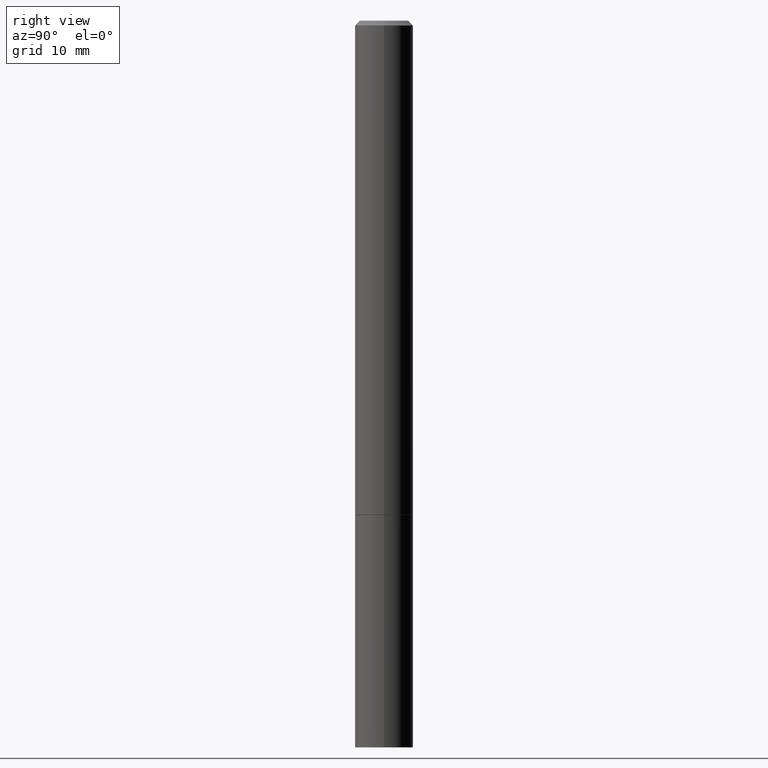
[diagram: clean part render]
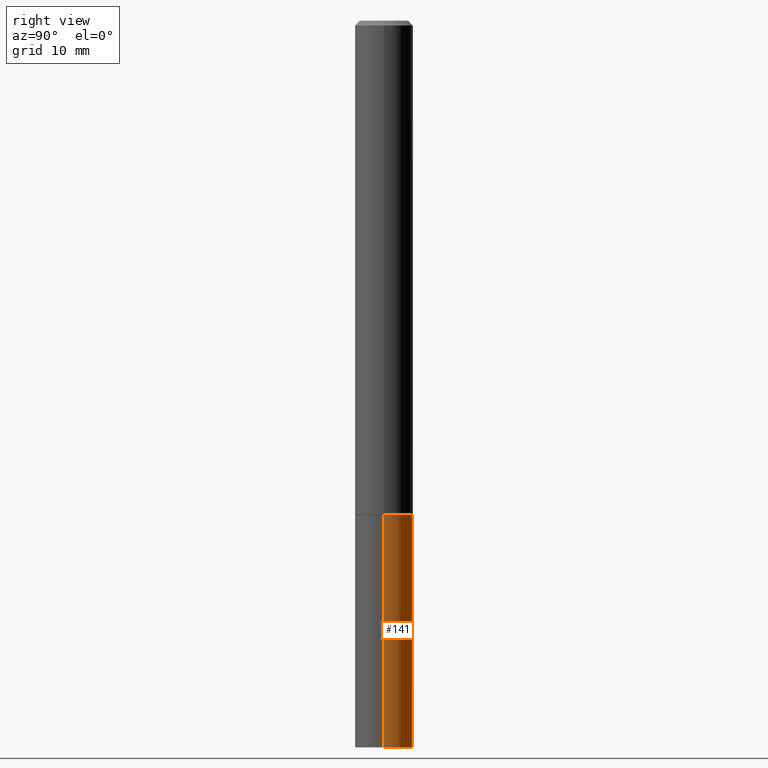
[diagram: same view with one face highlighted and labeled with its STEP entity id]
A machine part, right view. The second image highlights one B-rep face of the part: STEP entity #141.
In plain terms, the highlighted cylindrical surface (edge-blend (fillet) strip) has radius 2.9997 mm, axis along (-0, 0, 1).
Its self-contained STEP definition (entity closure, byte-faithful):
#1 = ORIENTED_EDGE ( 'NONE', *, *, #45, .F. ) ;
#8 = VERTEX_POINT ( 'NONE', #298 ) ;
#10 = DIRECTION ( 'NONE',  ( -2.445468806185136877E-29, 3.491481338843145188E-15, 1.000000000000000000 ) ) ;
#11 = EDGE_CURVE ( 'NONE', #37, #144, #153, .T. ) ;
#12 = CARTESIAN_POINT ( 'NONE',  ( 0.1180999999999999966, -8.246878922347480654E-16, 5.758764772215000440E-30 ) ) ;
#29 = CARTESIAN_POINT ( 'NONE',  ( -0.1180999999999999966, -7.820944767866917317E-15, -2.952799999999999869 ) ) ;
#37 = VERTEX_POINT ( 'NONE', #29 ) ;
#45 = EDGE_CURVE ( 'NONE', #8, #144, #212, .T. ) ;
#46 = ORIENTED_EDGE ( 'NONE', *, *, #244, .F. ) ;
#71 = LINE ( 'NONE', #12, #200 ) ;
#90 = DIRECTION ( 'NONE',  ( 1.000000000000000000, -6.982962677686266711E-15, 4.876176775795936353E-29 ) ) ;
#95 = CARTESIAN_POINT ( 'NONE',  ( 0.1180999999999999966, -1.113433398957078679E-14, -2.952799999999999869 ) ) ;
#99 = DIRECTION ( 'NONE',  ( -2.445468806185136597E-29, 3.491481338843145583E-15, 1.000000000000000000 ) ) ;
#100 = CIRCLE ( 'NONE', #309, 0.1180999999999999966 ) ;
#125 = DIRECTION ( 'NONE',  ( 1.000000000000000000, -6.982962677686265133E-15, 0.000000000000000000 ) ) ;
#127 = DIRECTION ( 'NONE',  ( -2.445468806185136597E-29, 3.491481338843145583E-15, 1.000000000000000000 ) ) ;
#141 = ADVANCED_FACE ( 'NONE', ( #238 ), #236, .T. ) ;
#144 = VERTEX_POINT ( 'NONE', #205 ) ;
#153 = LINE ( 'NONE', #347, #290 ) ;
#159 = CARTESIAN_POINT ( 'NONE',  ( 7.220980290903470182E-29, -1.030964609733603853E-14, -2.952799999999999869 ) ) ;
#182 = DIRECTION ( 'NONE',  ( 1.000000000000000000, -6.982962677686273021E-15, 0.000000000000000000 ) ) ;
#200 = VECTOR ( 'NONE', #354, 39.37007874015748143 ) ;
#205 = CARTESIAN_POINT ( 'NONE',  ( -0.1180999999999999966, -7.820944767866917317E-15, -2.007899999999999796 ) ) ;
#208 = EDGE_LOOP ( 'NONE', ( #215, #256, #1, #46 ) ) ;
#212 = CIRCLE ( 'NONE', #234, 0.1180999999999999966 ) ;
#215 = ORIENTED_EDGE ( 'NONE', *, *, #226, .T. ) ;
#226 = EDGE_CURVE ( 'NONE', #253, #37, #100, .T. ) ;
#234 = AXIS2_PLACEMENT_3D ( 'NONE', #314, #127, #125 ) ;
#236 = CYLINDRICAL_SURFACE ( 'NONE', #242, 0.1180999999999999966 ) ;
#238 = FACE_OUTER_BOUND ( 'NONE', #208, .T. ) ;
#242 = AXIS2_PLACEMENT_3D ( 'NONE', #262, #349, #90 ) ;
#244 = EDGE_CURVE ( 'NONE', #253, #8, #71, .T. ) ;
#253 = VERTEX_POINT ( 'NONE', #95 ) ;
#256 = ORIENTED_EDGE ( 'NONE', *, *, #11, .T. ) ;
#262 = CARTESIAN_POINT ( 'NONE',  ( 0.000000000000000000, 0.000000000000000000, 0.000000000000000000 ) ) ;
#290 = VECTOR ( 'NONE', #10, 39.37007874015748143 ) ;
#298 = CARTESIAN_POINT ( 'NONE',  ( 0.1180999999999999966, -7.835233272497899184E-15, -2.007899999999999796 ) ) ;
#309 = AXIS2_PLACEMENT_3D ( 'NONE', #159, #99, #182 ) ;
#314 = CARTESIAN_POINT ( 'NONE',  ( 4.910256815939135309E-29, -7.010545380263150922E-15, -2.007899999999999796 ) ) ;
#347 = CARTESIAN_POINT ( 'NONE',  ( -0.1180999999999999966, 8.391509709326782957E-16, -5.809262341591043784E-30 ) ) ;
#349 = DIRECTION ( 'NONE',  ( -2.445468806185136597E-29, 3.491481338843145583E-15, 1.000000000000000000 ) ) ;
#354 = DIRECTION ( 'NONE',  ( -2.445468806185136877E-29, 3.491481338843145188E-15, 1.000000000000000000 ) ) ;